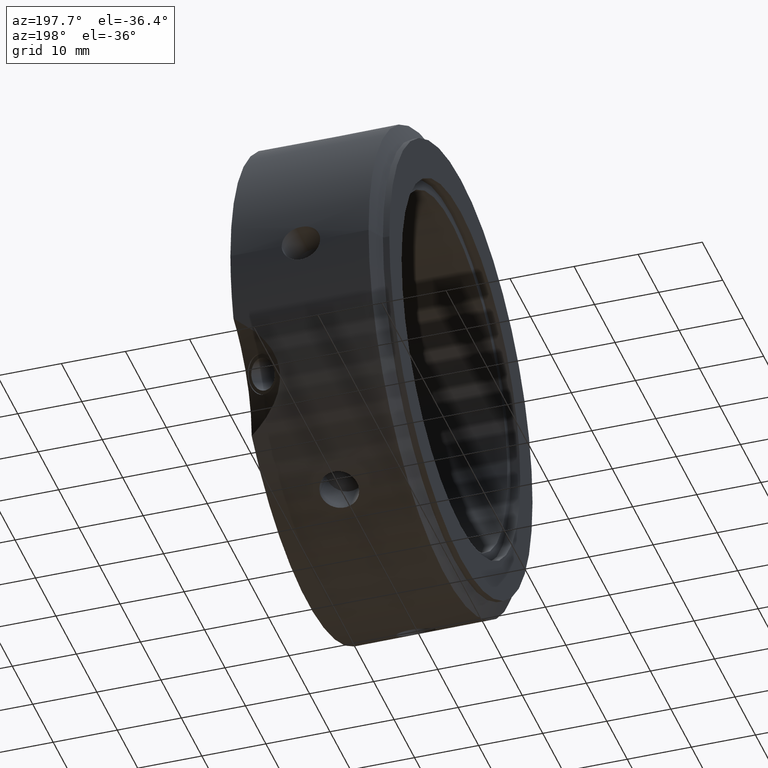
[diagram: clean part render]
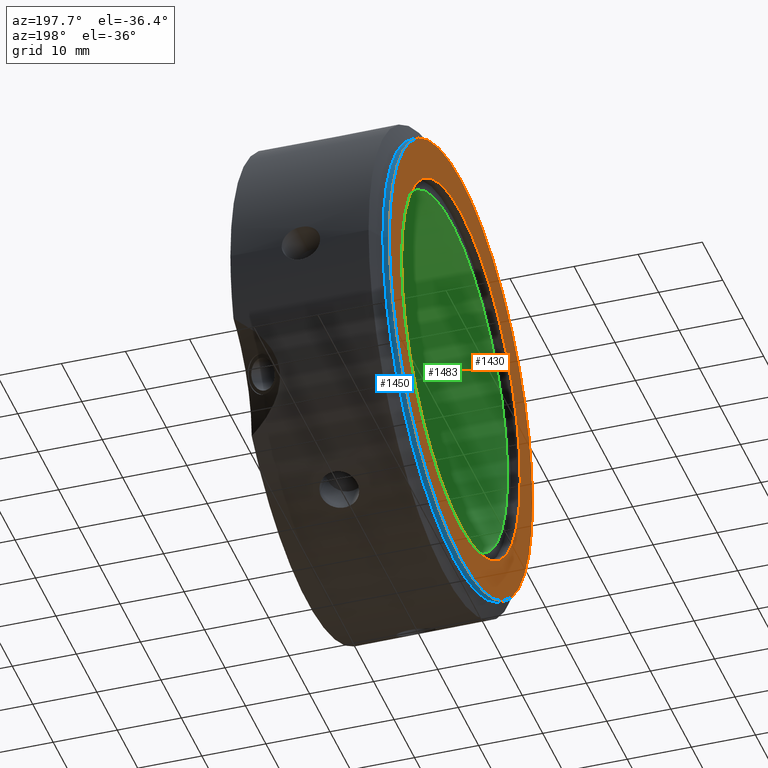
[diagram: same view with three faces highlighted in distinct colors, each labeled with its STEP entity id]
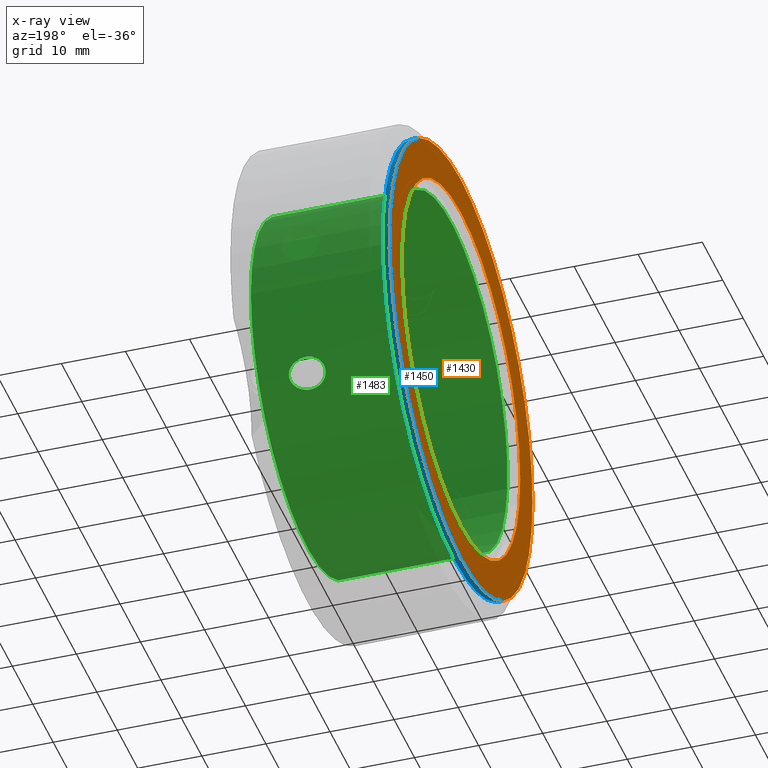
[diagram: x-ray of the same camera — body ghosted, the three highlighted faces saturated]
A machine part, auxiliary view with three faces highlighted in distinct colors.
The next image is the same camera in x-ray (body ghosted, the three faces saturated) — at least one of them is partly hidden behind the body in this view.
Their STEP definitions:

[orange] entity #1430 — the highlighted planar face has unit normal (-1, 0, 0).
#1396=CARTESIAN_POINT('',(-8.049117E-015,29.000000000000004,0.0));
#1397=VERTEX_POINT('',#1396);
#1398=CARTESIAN_POINT('',(-8.049117E-015,0.0,0.0));
#1399=DIRECTION('',(1.0,0.0,0.0));
#1400=DIRECTION('',(0.0,1.0,0.0));
#1401=AXIS2_PLACEMENT_3D('',#1398,#1399,#1400);
#1402=CIRCLE('',#1401,29.000000000000004);
#1403=EDGE_CURVE('',#1397,#1397,#1402,.T.);
#1411=CARTESIAN_POINT('',(-8.465451E-015,32.0,0.0));
#1412=DIRECTION('',(-1.0,0.0,0.0));
#1413=DIRECTION('',(0.0,0.0,1.0));
#1414=AXIS2_PLACEMENT_3D('',#1411,#1412,#1413);
#1415=PLANE('',#1414);
#1416=CARTESIAN_POINT('',(-8.881784E-015,34.999999999999993,0.0));
#1417=VERTEX_POINT('',#1416);
#1418=CARTESIAN_POINT('',(-8.881784E-015,0.0,0.0));
#1419=DIRECTION('',(1.0,0.0,0.0));
#1420=DIRECTION('',(0.0,1.0,0.0));
#1421=AXIS2_PLACEMENT_3D('',#1418,#1419,#1420);
#1422=CIRCLE('',#1421,34.999999999999993);
#1423=EDGE_CURVE('',#1417,#1417,#1422,.T.);
#1424=ORIENTED_EDGE('',*,*,#1423,.F.);
#1425=EDGE_LOOP('',(#1424));
#1426=FACE_OUTER_BOUND('',#1425,.T.);
#1427=ORIENTED_EDGE('',*,*,#1403,.T.);
#1428=EDGE_LOOP('',(#1427));
#1429=FACE_BOUND('',#1428,.T.);
#1430=ADVANCED_FACE('',(#1426,#1429),#1415,.T.);

[blue] entity #1450 — the highlighted cylindrical surface (bore or boss wall) has radius 35 mm, axis along (1, 0, 0).
#1416=CARTESIAN_POINT('',(-8.881784E-015,34.999999999999993,0.0));
#1417=VERTEX_POINT('',#1416);
#1418=CARTESIAN_POINT('',(-8.881784E-015,0.0,0.0));
#1419=DIRECTION('',(1.0,0.0,0.0));
#1420=DIRECTION('',(0.0,1.0,0.0));
#1421=AXIS2_PLACEMENT_3D('',#1418,#1419,#1420);
#1422=CIRCLE('',#1421,34.999999999999993);
#1423=EDGE_CURVE('',#1417,#1417,#1422,.T.);
#1431=CARTESIAN_POINT('',(0.499999999999991,0.0,0.0));
#1432=DIRECTION('',(1.0,0.0,0.0));
#1433=DIRECTION('',(0.0,1.0,0.0));
#1434=AXIS2_PLACEMENT_3D('',#1431,#1432,#1433);
#1435=CYLINDRICAL_SURFACE('',#1434,34.999999999999993);
#1436=CARTESIAN_POINT('',(0.999999999999991,34.999999999999993,0.0));
#1437=VERTEX_POINT('',#1436);
#1438=CARTESIAN_POINT('',(0.999999999999991,0.0,0.0));
#1439=DIRECTION('',(1.0,0.0,0.0));
#1440=DIRECTION('',(0.0,1.0,0.0));
#1441=AXIS2_PLACEMENT_3D('',#1438,#1439,#1440);
#1442=CIRCLE('',#1441,34.999999999999993);
#1443=EDGE_CURVE('',#1437,#1437,#1442,.T.);
#1444=ORIENTED_EDGE('',*,*,#1443,.F.);
#1445=EDGE_LOOP('',(#1444));
#1446=FACE_OUTER_BOUND('',#1445,.T.);
#1447=ORIENTED_EDGE('',*,*,#1423,.T.);
#1448=EDGE_LOOP('',(#1447));
#1449=FACE_BOUND('',#1448,.T.);
#1450=ADVANCED_FACE('',(#1446,#1449),#1435,.T.);

[green] entity #1483 — the highlighted cylindrical surface (bore or boss wall) has radius 27.5 mm, axis along (1, 0, 0).
#745=CARTESIAN_POINT('',(16.313557240018259,24.949585860027355,-11.565818838851101));
#746=VERTEX_POINT('',#745);
#747=CARTESIAN_POINT('',(16.313557240018259,24.949585860027355,-11.565818838851101));
#748=CARTESIAN_POINT('',(16.664884961330497,24.949585860027355,-11.565818838851101));
#749=CARTESIAN_POINT('',(17.042954444474891,24.924651251108656,-11.620117978884439));
#750=CARTESIAN_POINT('',(17.752441088790775,24.818827166877703,-11.844458618176201));
#751=CARTESIAN_POINT('',(18.083868808434342,24.737743192094563,-12.014374918418159));
#752=CARTESIAN_POINT('',(18.599496445961748,24.545067780327674,-12.402932227486168));
#753=CARTESIAN_POINT('',(18.82597922055297,24.423676335205514,-12.64220781096193));
#754=CARTESIAN_POINT('',(19.134569948012803,24.139864802392651,-13.176050692988568));
#755=CARTESIAN_POINT('',(19.215963676320115,23.976922134583898,-13.470752653777879));
#756=CARTESIAN_POINT('',(19.215963676320115,23.654475073560217,-14.029247346222151));
#757=CARTESIAN_POINT('',(19.134569948012803,23.480727022875968,-14.3177108162996));
#758=CARTESIAN_POINT('',(18.82597922055297,23.160311291817827,-14.830420254615861));
#759=CARTESIAN_POINT('',(18.599496445961748,23.013788280583547,-15.055186121631632));
#760=CARTESIAN_POINT('',(18.083868808434342,22.773625485987978,-15.416326577440389));
#761=CARTESIAN_POINT('',(17.752441088790775,22.667015640852949,-15.571505509563382));
#762=CARTESIAN_POINT('',(17.042954444474887,22.525642990240517,-15.775322174485495));
#763=CARTESIAN_POINT('',(16.66488496133049,22.491085860027354,-15.824065749259187));
#764=CARTESIAN_POINT('',(15.960337446406632,22.491085860027354,-15.824065749259187));
#765=CARTESIAN_POINT('',(15.580239111315183,22.52620142431595,-15.774576614491789));
#766=CARTESIAN_POINT('',(14.874880461369637,22.674845328356419,-15.560154475190892));
#767=CARTESIAN_POINT('',(14.549728107861464,22.788323813838151,-15.394831956136359));
#768=CARTESIAN_POINT('',(14.069481528974128,23.037834539678141,-15.018393062725062));
#769=CARTESIAN_POINT('',(13.870933050412106,23.18320961807126,-14.794462151064906));
#770=CARTESIAN_POINT('',(13.60529631203903,23.495763236461634,-14.29288034091571));
#771=CARTESIAN_POINT('',(13.538301129109332,23.662688029989411,-14.015022088406436));
#772=CARTESIAN_POINT('',(13.538301129109332,23.968709178154704,-13.484977911593589));
#773=CARTESIAN_POINT('',(13.605296312039034,24.125879086714992,-13.201487673622434));
#774=CARTESIAN_POINT('',(13.870933050412113,24.403984867185194,-12.680017394977019));
#775=CARTESIAN_POINT('',(14.069481528974137,24.525227186178945,-12.442153428181346));
#776=CARTESIAN_POINT('',(14.549728107861473,24.726477467925637,-12.037851354381573));
#777=CARTESIAN_POINT('',(14.874880461369642,24.812911726503629,-11.856914843644139));
#778=CARTESIAN_POINT('',(15.580239111315187,24.924284794251772,-11.620974376976946));
#779=CARTESIAN_POINT('',(15.960337446406633,24.949585860027355,-11.565818838851101));
#780=CARTESIAN_POINT('',(16.313557240018255,24.949585860027355,-11.565818838851101));
#781=B_SPLINE_CURVE_WITH_KNOTS('',3,(#747,#748,#749,#750,#751,#752,#753,#754,#755,#756,#757,#758,#759,#760,#761,#762,#763,#764,#765,#766,#767,#768,#769,#770,#771,#772,#773,#774,#775,#776,#777,#778,#779,#780),.UNSPECIFIED.,.T.,.U.,(4,2,2,2,2,2,2,2,2,2,2,2,2,2,2,2,4),(0.0,0.105398316393671,0.210796632787342,0.307530751094445,0.404264869401548,0.500998987708651,0.597733106015755,0.703131422409426,0.808529738803097,0.914495676886583,1.02046161497007,1.112267959419657,1.204074303869243,1.295880648318831,1.387686992768417,1.493652930851904,1.59961886893539),.UNSPECIFIED.);
#782=EDGE_CURVE('',#746,#746,#781,.T.);
#916=CARTESIAN_POINT('',(16.313557240018255,-22.491085860027368,-15.824065749259169));
#917=VERTEX_POINT('',#916);
#918=CARTESIAN_POINT('',(16.313557240018255,-22.491085860027368,-15.824065749259169));
#919=CARTESIAN_POINT('',(16.679507809969518,-22.491085860027368,-15.824065749259169));
#920=CARTESIAN_POINT('',(17.072565919145056,-22.528556094343593,-15.771242306985824));
#921=CARTESIAN_POINT('',(17.806052819065588,-22.681043970625243,-15.551146841442332));
#922=CARTESIAN_POINT('',(18.146512202583182,-22.795800304083404,-15.38379581556082));
#923=CARTESIAN_POINT('',(18.64805247304302,-23.044043498730396,-15.008805803242113));
#924=CARTESIAN_POINT('',(18.85743430763409,-23.186544047753056,-14.789169297298713));
#925=CARTESIAN_POINT('',(19.141732883000657,-23.495508415536253,-14.29323049733145));
#926=CARTESIAN_POINT('',(19.215963676320115,-23.661856120840518,-14.0164629973196));
#927=CARTESIAN_POINT('',(19.215963676320115,-23.969541087303618,-13.483537002680389));
#928=CARTESIAN_POINT('',(19.141732883000653,-24.126054920603654,-13.201091914019724));
#929=CARTESIAN_POINT('',(18.85743430763409,-24.401068336206077,-12.685551522671648));
#930=CARTESIAN_POINT('',(18.64805247304302,-24.520028855440181,-12.452324174193095));
#931=CARTESIAN_POINT('',(18.146512202583182,-24.720658134950124,-12.04984425515284));
#932=CARTESIAN_POINT('',(17.806052819065592,-24.808210207983823,-11.866786842192159));
#933=CARTESIAN_POINT('',(17.072565919145056,-24.922574534261422,-11.624680734791363));
#934=CARTESIAN_POINT('',(16.679507809969518,-24.949585860027366,-11.565818838851081));
#935=CARTESIAN_POINT('',(15.970696281052712,-24.949585860027366,-11.565818838851081));
#936=CARTESIAN_POINT('',(15.601262682623815,-24.925732236504583,-11.617791034024759));
#937=CARTESIAN_POINT('',(14.912537349253155,-24.820576258313221,-11.840785033981104));
#938=CARTESIAN_POINT('',(14.593355549898757,-24.738929006300133,-12.011983555801898));
#939=CARTESIAN_POINT('',(14.102380322574815,-24.54346446339704,-12.406165543592451));
#940=CARTESIAN_POINT('',(13.891945985134619,-24.420383920257169,-12.648582922051798));
#941=CARTESIAN_POINT('',(13.609868764515735,-24.135773499320745,-13.183559394162872));
#942=CARTESIAN_POINT('',(13.538301129109332,-23.973905235999943,-13.475978075406566));
#943=CARTESIAN_POINT('',(13.538301129109332,-23.657491972144193,-14.024021924593423));
#944=CARTESIAN_POINT('',(13.609868764515733,-23.485184097306409,-14.310413293317559));
#945=CARTESIAN_POINT('',(13.891945985134619,-23.164186092499452,-14.824381384085823));
#946=CARTESIAN_POINT('',(14.102380322574817,-23.015786756004765,-15.052180950386207));
#947=CARTESIAN_POINT('',(14.593355549898758,-22.772147412315444,-15.418549203974676));
#948=CARTESIAN_POINT('',(14.912537349253155,-22.66470876933484,-15.574857059277598));
#949=CARTESIAN_POINT('',(15.601262682623815,-22.524168289576821,-15.777421807729295));
#950=CARTESIAN_POINT('',(15.970696281052712,-22.491085860027361,-15.824065749259169));
#951=CARTESIAN_POINT('',(16.313557240018255,-22.491085860027361,-15.824065749259169));
#952=B_SPLINE_CURVE_WITH_KNOTS('',3,(#918,#919,#920,#921,#922,#923,#924,#925,#926,#927,#928,#929,#930,#931,#932,#933,#934,#935,#936,#937,#938,#939,#940,#941,#942,#943,#944,#945,#946,#947,#948,#949,#950,#951),.UNSPECIFIED.,.T.,.U.,(4,2,2,2,2,2,2,2,2,2,2,2,2,2,2,2,4),(0.0,0.109785170985378,0.219570341970756,0.311875831909685,0.404181321848614,0.496486811787542,0.588792301726471,0.698577472711849,0.808362643697227,0.911220931386891,1.014079219076554,1.10900319823328,1.203927177390005,1.298851156546731,1.393775135703457,1.49663342339312,1.599491711082784),.UNSPECIFIED.);
#953=EDGE_CURVE('',#917,#917,#952,.T.);
#1178=CARTESIAN_POINT('',(16.313557240018255,-2.4585,27.38988458811026));
#1179=VERTEX_POINT('',#1178);
#1180=CARTESIAN_POINT('',(16.313557240018255,-2.4585,27.38988458811026));
#1181=CARTESIAN_POINT('',(16.679507809969518,-2.4585,27.38988458811026));
#1182=CARTESIAN_POINT('',(17.07256591914506,-2.394018439917827,27.395923041777195));
#1183=CARTESIAN_POINT('',(17.806052819065595,-2.127166237358574,27.417933683634494));
#1184=CARTESIAN_POINT('',(18.146512202583185,-1.924857830866719,27.433640070713672));
#1185=CARTESIAN_POINT('',(18.648052473043023,-1.475985356709782,27.46112997743522));
#1186=CARTESIAN_POINT('',(18.85743430763409,-1.214524288453012,27.474720819970369));
#1187=CARTESIAN_POINT('',(19.141732883000657,-0.630546505067397,27.494322411351185));
#1188=CARTESIAN_POINT('',(19.215963676320115,-0.307684966463095,27.5));
#1189=CARTESIAN_POINT('',(19.215963676320115,0.307684966463095,27.5));
#1190=CARTESIAN_POINT('',(19.141732883000653,0.630546505067397,27.494322411351185));
#1191=CARTESIAN_POINT('',(18.85743430763409,1.214524288453012,27.474720819970369));
#1192=CARTESIAN_POINT('',(18.648052473043023,1.475985356709782,27.461129977435228));
#1193=CARTESIAN_POINT('',(18.146512202583185,1.924857830866719,27.433640070713672));
#1194=CARTESIAN_POINT('',(17.806052819065595,2.127166237358574,27.417933683634494));
#1195=CARTESIAN_POINT('',(17.07256591914506,2.394018439917827,27.395923041777195));
#1196=CARTESIAN_POINT('',(16.679507809969518,2.4585,27.38988458811026));
#1197=CARTESIAN_POINT('',(15.970696281052712,2.4585,27.38988458811026));
#1198=CARTESIAN_POINT('',(15.601262682623815,2.401563946927765,27.395212841754059));
#1199=CARTESIAN_POINT('',(14.912537349253153,2.15586748897838,27.415642093258707));
#1200=CARTESIAN_POINT('',(14.593355549898758,1.966781593984683,27.430532759776582));
#1201=CARTESIAN_POINT('',(14.102380322574817,1.527677707392269,27.458346493978667));
#1202=CARTESIAN_POINT('',(13.891945985134619,1.256197827757715,27.472964306137627));
#1203=CARTESIAN_POINT('',(13.609868764515733,0.650589402014336,27.493972687480436));
#1204=CARTESIAN_POINT('',(13.538301129109334,0.316413263855751,27.5));
#1205=CARTESIAN_POINT('',(13.538301129109334,-0.30602114816529,27.5));
#1206=CARTESIAN_POINT('',(13.605296312039037,-0.630115850253353,27.494368014538111));
#1207=CARTESIAN_POINT('',(13.870933050412113,-1.220775249113933,27.474479546041898));
#1208=CARTESIAN_POINT('',(14.069481528974137,-1.487392646500796,27.460546490906388));
#1209=CARTESIAN_POINT('',(14.549728107861473,-1.938153654087478,27.432683310517909));
#1210=CARTESIAN_POINT('',(14.874880461369642,-2.138066398147209,27.417069318835008));
#1211=CARTESIAN_POINT('',(15.580239111315187,-2.398083369935825,27.395550991468703));
#1212=CARTESIAN_POINT('',(15.960337446406633,-2.4585,27.389884588110256));
#1213=CARTESIAN_POINT('',(16.313557240018255,-2.4585,27.389884588110256));
#1214=B_SPLINE_CURVE_WITH_KNOTS('',3,(#1180,#1181,#1182,#1183,#1184,#1185,#1186,#1187,#1188,#1189,#1190,#1191,#1192,#1193,#1194,#1195,#1196,#1197,#1198,#1199,#1200,#1201,#1202,#1203,#1204,#1205,#1206,#1207,#1208,#1209,#1210,#1211,#1212,#1213),.UNSPECIFIED.,.T.,.U.,(4,2,2,2,2,2,2,2,2,2,2,2,2,2,2,2,4),(0.0,0.109785170985378,0.219570341970756,0.311875831909685,0.404181321848614,0.496486811787542,0.588792301726471,0.698577472711849,0.808362643697227,0.911220931386891,1.014079219076554,1.10900319823328,1.203927177390005,1.295733521839592,1.387539866289179,1.493505804372665,1.599471742456152),.UNSPECIFIED.);
#1215=EDGE_CURVE('',#1179,#1179,#1214,.T.);
#1351=CARTESIAN_POINT('',(23.999999999999993,27.5,0.0));
#1352=VERTEX_POINT('',#1351);
#1353=CARTESIAN_POINT('',(23.999999999999993,0.0,0.0));
#1354=DIRECTION('',(1.0,0.0,0.0));
#1355=DIRECTION('',(0.0,1.0,0.0));
#1356=AXIS2_PLACEMENT_3D('',#1353,#1354,#1355);
#1357=CIRCLE('',#1356,27.5);
#1358=EDGE_CURVE('',#1352,#1352,#1357,.T.);
#1379=CARTESIAN_POINT('',(1.499999999999992,27.5,0.0));
#1380=VERTEX_POINT('',#1379);
#1381=CARTESIAN_POINT('',(1.499999999999992,0.0,0.0));
#1382=DIRECTION('',(1.0,0.0,0.0));
#1383=DIRECTION('',(0.0,1.0,0.0));
#1384=AXIS2_PLACEMENT_3D('',#1381,#1382,#1383);
#1385=CIRCLE('',#1384,27.5);
#1386=EDGE_CURVE('',#1380,#1380,#1385,.T.);
#1463=CARTESIAN_POINT('',(12.749999999999993,0.0,0.0));
#1464=DIRECTION('',(1.0,0.0,0.0));
#1465=DIRECTION('',(0.0,1.0,0.0));
#1466=AXIS2_PLACEMENT_3D('',#1463,#1464,#1465);
#1467=CYLINDRICAL_SURFACE('',#1466,27.5);
#1468=ORIENTED_EDGE('',*,*,#1386,.F.);
#1469=EDGE_LOOP('',(#1468));
#1470=FACE_OUTER_BOUND('',#1469,.T.);
#1471=ORIENTED_EDGE('',*,*,#782,.T.);
#1472=EDGE_LOOP('',(#1471));
#1473=FACE_BOUND('',#1472,.T.);
#1474=ORIENTED_EDGE('',*,*,#953,.T.);
#1475=EDGE_LOOP('',(#1474));
#1476=FACE_BOUND('',#1475,.T.);
#1477=ORIENTED_EDGE('',*,*,#1215,.T.);
#1478=EDGE_LOOP('',(#1477));
#1479=FACE_BOUND('',#1478,.T.);
#1480=ORIENTED_EDGE('',*,*,#1358,.T.);
#1481=EDGE_LOOP('',(#1480));
#1482=FACE_BOUND('',#1481,.T.);
#1483=ADVANCED_FACE('',(#1470,#1473,#1476,#1479,#1482),#1467,.F.);